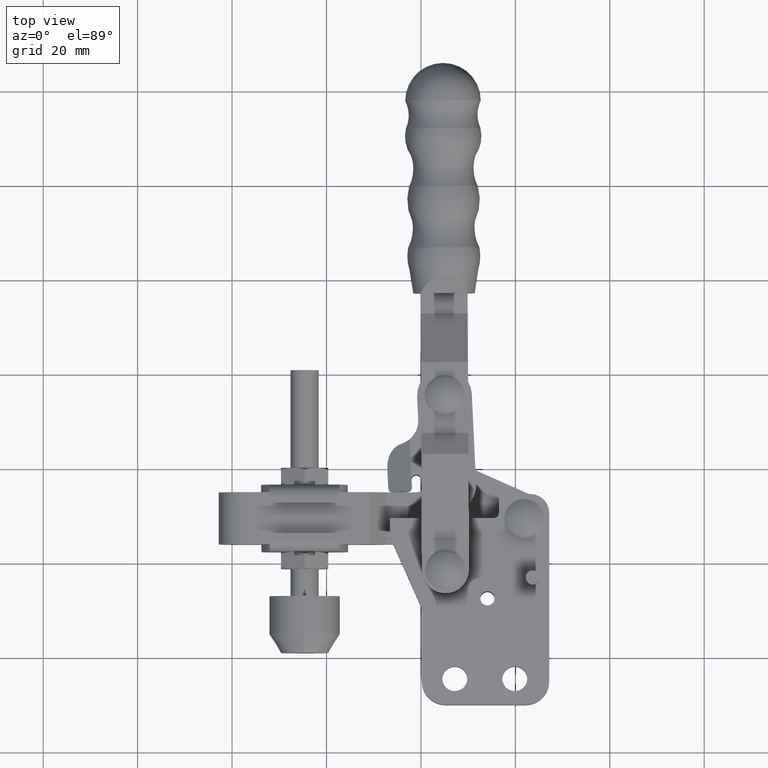
[diagram: clean part render]
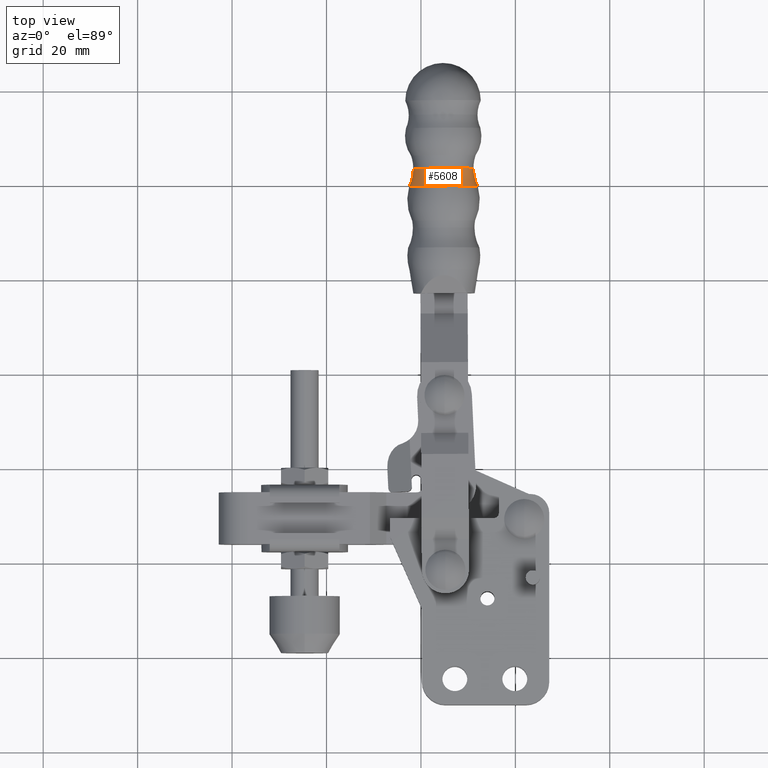
[diagram: same view with one face highlighted and labeled with its STEP entity id]
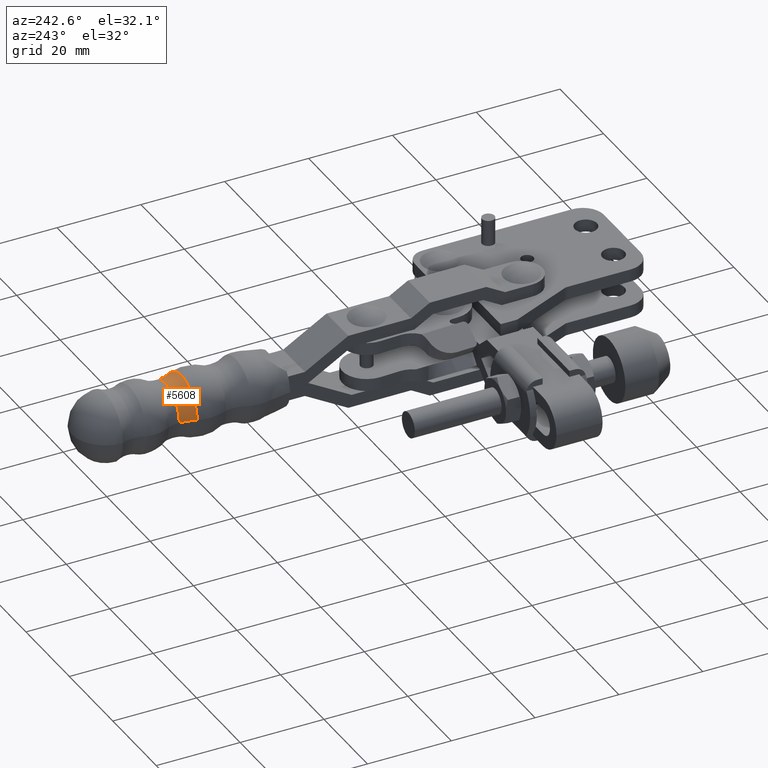
[diagram: same view with one face highlighted and labeled with its STEP entity id]
A machine part, top view. The second image highlights one B-rep face of the part: STEP entity #5608.
A second angle (auxiliary view) of the same face is appended — the face is thin or edge-on in the first view.
In plain terms, the highlighted toroidal blend (fillet) surface has major radius 14.9271 mm and minor (blend) radius 8.5531 mm.
Its self-contained STEP definition (entity closure, byte-faithful):
#94 = CARTESIAN_POINT ( 'NONE',  ( 24.77593734282355000, 99.73973163135906400, -25.68006977252606800 ) ) ;
#242 = VERTEX_POINT ( 'NONE', #1911 ) ;
#395 = ORIENTED_EDGE ( 'NONE', *, *, #9066, .T. ) ;
#548 = EDGE_CURVE ( 'NONE', #5753, #8702, #5914, .T. ) ;
#673 = DIRECTION ( 'NONE',  ( 1.765690344522603200E-021, -3.943233274035996800E-020, -1.000000000000000000 ) ) ;
#872 = DIRECTION ( 'NONE',  ( 0.0000000000000000000, 1.000000000000000000, 0.0000000000000000000 ) ) ;
#1039 = DIRECTION ( 'NONE',  ( 0.9999875988197105500, 0.004980181401278913900, 0.0000000000000000000 ) ) ;
#1145 = CARTESIAN_POINT ( 'NONE',  ( 24.75697750842856600, 103.5467414052973500, -25.68006977252606800 ) ) ;
#1502 = AXIS2_PLACEMENT_3D ( 'NONE', #7860, #673, #872 ) ;
#1555 = EDGE_CURVE ( 'NONE', #242, #5753, #4927, .T. ) ;
#1683 = CARTESIAN_POINT ( 'NONE',  ( 18.38307997338343500, 103.5149978456820500, -25.68006977252606400 ) ) ;
#1710 = DIRECTION ( 'NONE',  ( 0.004980181401279459500, -0.9999875988197106700, 3.944063719110663000E-020 ) ) ;
#1911 = CARTESIAN_POINT ( 'NONE',  ( 32.04382336178508700, 99.77592747100844400, -25.68006977252606800 ) ) ;
#2208 = CIRCLE ( 'NONE', #1502, 8.553090308906760700 ) ;
#2354 = DIRECTION ( 'NONE',  ( 1.000000000000000000, 0.0000000000000000000, 0.0000000000000000000 ) ) ;
#2419 = CARTESIAN_POINT ( 'NONE',  ( 24.75697750842856600, 103.5467414052973500, -25.68006977252606800 ) ) ;
#3064 = AXIS2_PLACEMENT_3D ( 'NONE', #2419, #8138, #8162 ) ;
#3279 = CARTESIAN_POINT ( 'NONE',  ( 9.830095732891626500, 103.4724019044021800, -25.68006977252606400 ) ) ;
#3606 = EDGE_CURVE ( 'NONE', #7800, #8702, #4689, .T. ) ;
#4281 = AXIS2_PLACEMENT_3D ( 'NONE', #94, #1710, #1039 ) ;
#4400 = AXIS2_PLACEMENT_3D ( 'NONE', #3279, #10478, #2354 ) ;
#4575 = DIRECTION ( 'NONE',  ( 0.9999875988197105500, 0.004980181401279458600, -2.686242500252376800E-036 ) ) ;
#4689 = CIRCLE ( 'NONE', #3064, 6.373976579877861100 ) ;
#4927 = CIRCLE ( 'NONE', #4281, 7.267976150444126500 ) ;
#5183 = ORIENTED_EDGE ( 'NONE', *, *, #3606, .T. ) ;
#5407 = DIRECTION ( 'NONE',  ( 0.004980181401279459500, -0.9999875988197106700, 3.944063719110663000E-020 ) ) ;
#5608 = ADVANCED_FACE ( 'NONE', ( #6129 ), #7392, .F. ) ;
#5753 = VERTEX_POINT ( 'NONE', #8140 ) ;
#5914 = CIRCLE ( 'NONE', #4400, 8.553090308906760700 ) ;
#5979 = ORIENTED_EDGE ( 'NONE', *, *, #548, .F. ) ;
#6129 = FACE_OUTER_BOUND ( 'NONE', #7079, .T. ) ;
#6600 = CARTESIAN_POINT ( 'NONE',  ( 31.13087504347370100, 103.5784849649126500, -25.68006977252606800 ) ) ;
#7079 = EDGE_LOOP ( 'NONE', ( #395, #5183, #5979, #10613 ) ) ;
#7392 = TOROIDAL_SURFACE ( 'NONE', #8934, 14.92706688878461700, 8.553090308906758900 ) ;
#7800 = VERTEX_POINT ( 'NONE', #6600 ) ;
#7860 = CARTESIAN_POINT ( 'NONE',  ( 39.68385928396550400, 103.6210809061925300, -25.68006977252606800 ) ) ;
#8138 = DIRECTION ( 'NONE',  ( 0.004980181401279459500, -0.9999875988197106700, 3.944063719110663000E-020 ) ) ;
#8140 = CARTESIAN_POINT ( 'NONE',  ( 17.50805132386200900, 99.70353579170968300, -25.68006977252606800 ) ) ;
#8162 = DIRECTION ( 'NONE',  ( 0.9999875988197104400, 0.004980181401279570500, 0.0000000000000000000 ) ) ;
#8702 = VERTEX_POINT ( 'NONE', #1683 ) ;
#8934 = AXIS2_PLACEMENT_3D ( 'NONE', #1145, #5407, #4575 ) ;
#9066 = EDGE_CURVE ( 'NONE', #242, #7800, #2208, .T. ) ;
#10478 = DIRECTION ( 'NONE',  ( 1.224613955178161100E-016, 6.493286539653670500E-019, 1.000000000000000000 ) ) ;
#10613 = ORIENTED_EDGE ( 'NONE', *, *, #1555, .F. ) ;